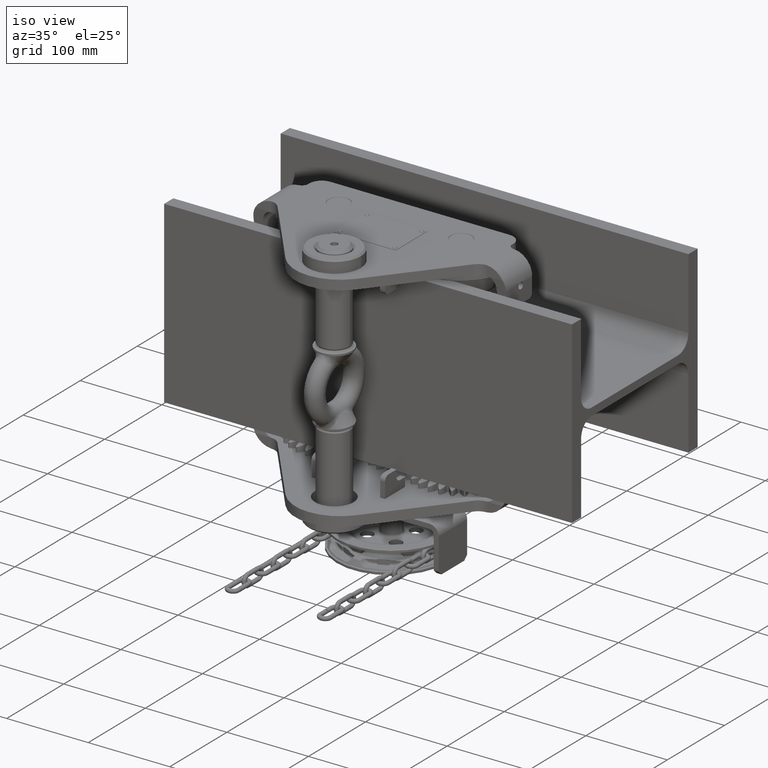
[diagram: clean part render]
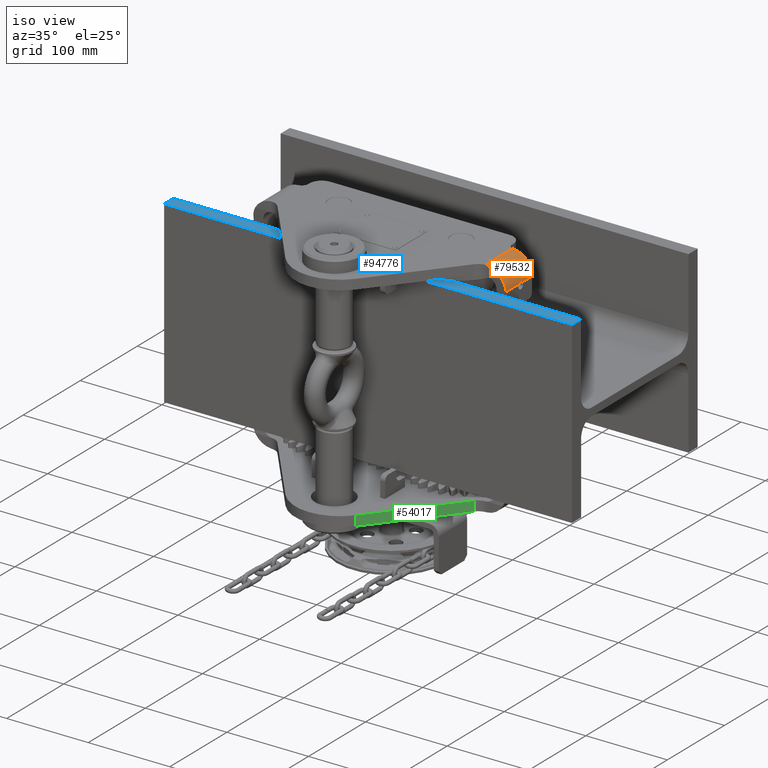
[diagram: same view with three faces highlighted in distinct colors, each labeled with its STEP entity id]
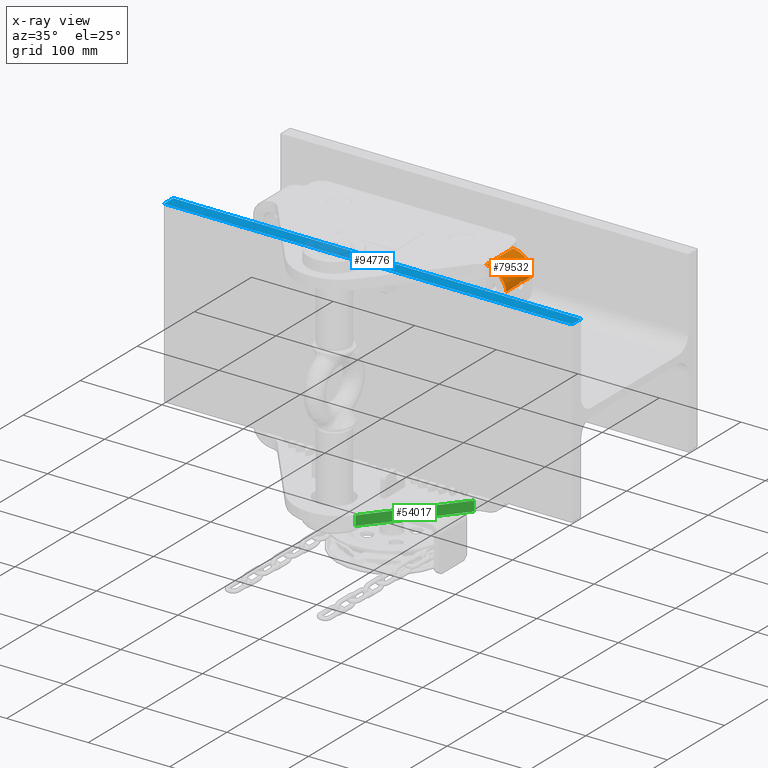
[diagram: x-ray of the same camera — body ghosted, the three highlighted faces saturated]
A machine part, iso view with three faces highlighted in distinct colors.
The next image is the same camera in x-ray (body ghosted, the three faces saturated) — at least one of them is partly hidden behind the body in this view.
Their STEP definitions:

[orange] entity #79532 — the highlighted cylindrical surface (edge-blend (fillet) strip) has radius 24 mm, axis along (0, 1, 0).
#750 = AXIS2_PLACEMENT_3D ( 'NONE', #62096, #78544, #3042 ) ;
#1427 = B_SPLINE_CURVE_WITH_KNOTS ( 'NONE', 3,
 ( #93374, #76256, #60116, #17156 ),
 .UNSPECIFIED., .F., .F.,
 ( 4, 4 ),
 ( 0.0000000000000000000, 0.002017796219549548300 ),
 .UNSPECIFIED. ) ;
#2749 = ORIENTED_EDGE ( 'NONE', *, *, #34547, .T. ) ;
#3042 = DIRECTION ( 'NONE',  ( -1.000000000000000000, 2.891205793294672300E-015, 0.0000000000000000000 ) ) ;
#3150 = CARTESIAN_POINT ( 'NONE',  ( 130.9999999999998300, -214.0000000000000900, 136.9999999999990600 ) ) ;
#5962 = CARTESIAN_POINT ( 'NONE',  ( 154.9983832628800500, -66.26621241989738600, 113.3048574880119600 ) ) ;
#8067 = VERTEX_POINT ( 'NONE', #99034 ) ;
#9664 = DIRECTION ( 'NONE',  ( 1.443289932012703500E-015, 1.000000000000000000, 1.774864183143377200E-016 ) ) ;
#13777 = LINE ( 'NONE', #43773, #16383 ) ;
#15110 = CARTESIAN_POINT ( 'NONE',  ( 154.9834419898462600, -64.95231560868063500, 113.8923899281639200 ) ) ;
#15161 = VERTEX_POINT ( 'NONE', #59508 ) ;
#16383 = VECTOR ( 'NONE', #95043, 1000.000000000000000 ) ;
#16520 = EDGE_CURVE ( 'NONE', #29580, #23206, #70363, .T. ) ;
#16639 = AXIS2_PLACEMENT_3D ( 'NONE', #89084, #55750, #73080 ) ;
#17156 = CARTESIAN_POINT ( 'NONE',  ( 131.0000000000000900, -43.74596669241490300, 136.9999999999989200 ) ) ;
#18936 = CARTESIAN_POINT ( 'NONE',  ( 154.9940151314229400, -62.14131869477211000, 113.5500360449581800 ) ) ;
#20649 = CARTESIAN_POINT ( 'NONE',  ( 154.9791576165636700, -64.00000000000008500, 113.9999999999995700 ) ) ;
#21479 = CARTESIAN_POINT ( 'NONE',  ( 131.0000000000000000, -91.04809906435021100, 136.9999999999994000 ) ) ;
#21720 = CARTESIAN_POINT ( 'NONE',  ( 155.0000000000000900, -66.64575131106445800, 112.9999999999997700 ) ) ;
#21879 = CARTESIAN_POINT ( 'NONE',  ( 154.9834782315479900, -63.04379662703256300, 113.8914257613671200 ) ) ;
#23206 = VERTEX_POINT ( 'NONE', #64597 ) ;
#23622 = VECTOR ( 'NONE', #9664, 1000.000000000000000 ) ;
#27378 = CARTESIAN_POINT ( 'NONE',  ( 154.9911833381892700, -62.35938034738000400, 113.6560943976108300 ) ) ;
#28451 = CARTESIAN_POINT ( 'NONE',  ( 155.0000000000000300, -89.31350998357126500, 112.9999999999995900 ) ) ;
#28496 = CARTESIAN_POINT ( 'NONE',  ( 132.2002743063654900, -90.99999999999980100, 136.9699674924571000 ) ) ;
#28744 = DIRECTION ( 'NONE',  ( 1.443289932012703500E-015, 1.000000000000000000, 1.774864183143377200E-016 ) ) ;
#29580 = VERTEX_POINT ( 'NONE', #28496 ) ;
#31268 = CARTESIAN_POINT ( 'NONE',  ( 154.9800898529625200, -64.48005417087898600, 113.9783353760625600 ) ) ;
#31785 = DIRECTION ( 'NONE',  ( -1.000000000000000000, 1.156482317317869000E-015, 0.0000000000000000000 ) ) ;
#34547 = EDGE_CURVE ( 'NONE', #99488, #29580, #41269, .T. ) ;
#34652 = ORIENTED_EDGE ( 'NONE', *, *, #72419, .F. ) ;
#35859 = CARTESIAN_POINT ( 'NONE',  ( 154.9858886638317900, -62.81249522030400800, 113.8273347759247800 ) ) ;
#35883 = ORIENTED_EDGE ( 'NONE', *, *, #37915, .T. ) ;
#37915 = EDGE_CURVE ( 'NONE', #58166, #94272, #72690, .T. ) ;
#38671 = AXIS2_PLACEMENT_3D ( 'NONE', #71520, #71890, #31785 ) ;
#38776 = CARTESIAN_POINT ( 'NONE',  ( 132.2002743063654900, -90.99999999999980100, 136.9699674924571000 ) ) ;
#41269 = B_SPLINE_CURVE_WITH_KNOTS ( 'NONE', 3,
 ( #21479, #72597, #79846, #38776 ),
 .UNSPECIFIED., .F., .F.,
 ( 4, 4 ),
 ( 0.0000000000000000000, 0.001201613033393788000 ),
 .UNSPECIFIED. ) ;
#43310 = ORIENTED_EDGE ( 'NONE', *, *, #95048, .F. ) ;
#43773 = CARTESIAN_POINT ( 'NONE',  ( 154.9999999999998600, -214.0000000000001400, 112.9999999999997700 ) ) ;
#44618 = CARTESIAN_POINT ( 'NONE',  ( 154.9791576165636700, -64.00000000000008500, 113.9999999999995700 ) ) ;
#44678 = EDGE_CURVE ( 'NONE', #99488, #15161, #103049, .T. ) ;
#45974 = EDGE_CURVE ( 'NONE', #82334, #8067, #50656, .T. ) ;
#47188 = LINE ( 'NONE', #66980, #23622 ) ;
#50656 = B_SPLINE_CURVE_WITH_KNOTS ( 'NONE', 3,
 ( #20649, #79343, #31268, #15110, #55846, #80804, #56959, #5962, #97566, #21720 ),
 .UNSPECIFIED., .F., .F.,
 ( 4, 2, 2, 2, 4 ),
 ( 0.002876214318826570800, 0.003594983903965049900, 0.004313753489103528500, 0.005032523074242007200, 0.005751292659380486700 ),
 .UNSPECIFIED. ) ;
#54769 = VERTEX_POINT ( 'NONE', #64358 ) ;
#55750 = DIRECTION ( 'NONE',  ( 3.269336612700054900E-015, 1.000000000000000000, 1.774864183143375400E-016 ) ) ;
#55846 = CARTESIAN_POINT ( 'NONE',  ( 154.9858960904387000, -65.18808659243418900, 113.8270599191720900 ) ) ;
#56959 = CARTESIAN_POINT ( 'NONE',  ( 154.9939591275471900, -65.85405069758790800, 113.5525058422104800 ) ) ;
#58166 = VERTEX_POINT ( 'NONE', #70258 ) ;
#58491 = CYLINDRICAL_SURFACE ( 'NONE', #38671, 24.00000000000005000 ) ;
#58760 = CARTESIAN_POINT ( 'NONE',  ( 133.0000000000000900, -44.00000000000005000, 136.9165214862017300 ) ) ;
#59508 = CARTESIAN_POINT ( 'NONE',  ( 131.0000000000000900, -43.74596669241490300, 136.9999999999989200 ) ) ;
#60116 = CARTESIAN_POINT ( 'NONE',  ( 131.6570357428105100, -43.91561259173275300, 136.9999999999989200 ) ) ;
#60831 = CARTESIAN_POINT ( 'NONE',  ( 154.9984101556534000, -61.73068422828944800, 113.3026743774056800 ) ) ;
#61212 = CARTESIAN_POINT ( 'NONE',  ( 154.9791576165636700, -63.75856409276595100, 113.9999999999995700 ) ) ;
#61502 =( BOUNDED_CURVE ( )  B_SPLINE_CURVE ( 3, ( #28451, #63009, #87122, #70376 ),
 .UNSPECIFIED., .F., .F. ) 
 B_SPLINE_CURVE_WITH_KNOTS ( ( 4, 4 ),
 ( 1.570796326794896800, 2.094395102393194800 ),
 .UNSPECIFIED. ) 
 CURVE ( )  GEOMETRIC_REPRESENTATION_ITEM ( )  RATIONAL_B_SPLINE_CURVE ( ( 1.000000000000000000, 0.9772838841927122800, 0.9772838841927122800, 1.000000000000000000 ) ) 
 REPRESENTATION_ITEM ( '' )  );
#62096 = CARTESIAN_POINT ( 'NONE',  ( 131.0000000000000900, -44.00000000000004300, 112.9999999999996000 ) ) ;
#63009 = CARTESIAN_POINT ( 'NONE',  ( 154.9999999999999100, -89.90903225052242900, 117.2373611072699500 ) ) ;
#63075 = EDGE_CURVE ( 'NONE', #54769, #8067, #13777, .T. ) ;
#63769 = CARTESIAN_POINT ( 'NONE',  ( 154.9801120645366800, -63.51561951039889900, 113.9778002574287300 ) ) ;
#64358 = CARTESIAN_POINT ( 'NONE',  ( 155.0000000000000300, -89.31350998357126500, 112.9999999999995900 ) ) ;
#64597 = CARTESIAN_POINT ( 'NONE',  ( 151.7846096908264700, -91.00000000000005700, 124.9999999999994900 ) ) ;
#65118 = EDGE_LOOP ( 'NONE', ( #34652, #86463, #35883, #97952, #104361, #2749, #86057, #43310, #91571, #88517 ) ) ;
#66980 = CARTESIAN_POINT ( 'NONE',  ( 154.9999999999998600, -214.0000000000001400, 112.9999999999997700 ) ) ;
#68588 = CARTESIAN_POINT ( 'NONE',  ( 155.0000000000000900, -61.35424868893569800, 112.9999999999997700 ) ) ;
#68939 = CARTESIAN_POINT ( 'NONE',  ( 155.0000000000000900, -61.53660455093325500, 113.1608227536532200 ) ) ;
#69972 = VERTEX_POINT ( 'NONE', #90201 ) ;
#70258 = CARTESIAN_POINT ( 'NONE',  ( 155.0000000000001100, -44.00000000000008500, 112.9999999999996000 ) ) ;
#70363 = CIRCLE ( 'NONE', #16639, 24.00000000000005000 ) ;
#70376 = CARTESIAN_POINT ( 'NONE',  ( 151.7846096908264700, -91.00000000000005700, 124.9999999999994900 ) ) ;
#71520 = CARTESIAN_POINT ( 'NONE',  ( 130.9999999999998300, -214.0000000000000900, 112.9999999999997700 ) ) ;
#71890 = DIRECTION ( 'NONE',  ( 1.443289932012703500E-015, 1.000000000000000000, 1.774864183143377200E-016 ) ) ;
#72419 = EDGE_CURVE ( 'NONE', #69972, #82334, #85316, .T. ) ;
#72597 = CARTESIAN_POINT ( 'NONE',  ( 131.3996986195029700, -91.01601297808308300, 136.9999999999994000 ) ) ;
#72690 = CIRCLE ( 'NONE', #750, 24.00000000000005000 ) ;
#73080 = DIRECTION ( 'NONE',  ( 1.000000000000000000, -3.469446951953607100E-015, -1.098658201451975600E-014 ) ) ;
#73749 = EDGE_CURVE ( 'NONE', #69972, #58166, #47188, .T. ) ;
#76256 = CARTESIAN_POINT ( 'NONE',  ( 132.3237767006531600, -44.00000000000004300, 136.9730701193076600 ) ) ;
#78544 = DIRECTION ( 'NONE',  ( -2.862609139630093600E-015, -1.000000000000000000, -1.774864183143376400E-016 ) ) ;
#79343 = CARTESIAN_POINT ( 'NONE',  ( 154.9791576165636700, -64.24134055065980000, 113.9999999999995900 ) ) ;
#79532 = ADVANCED_FACE ( 'NONE', ( #92577 ), #58491, .T. ) ;
#79846 = CARTESIAN_POINT ( 'NONE',  ( 131.7997916621560800, -90.99999999999978700, 136.9900212963741000 ) ) ;
#80804 = CARTESIAN_POINT ( 'NONE',  ( 154.9911572625071900, -65.63844167376674900, 113.6569722801410100 ) ) ;
#81900 = EDGE_CURVE ( 'NONE', #94272, #15161, #1427, .T. ) ;
#82334 = VERTEX_POINT ( 'NONE', #107025 ) ;
#85316 = B_SPLINE_CURVE_WITH_KNOTS ( 'NONE', 3,
 ( #68588, #68939, #60831, #18936, #27378, #35859, #21879, #63769, #61212, #44618 ),
 .UNSPECIFIED., .F., .F.,
 ( 4, 2, 2, 2, 4 ),
 ( 2.309724214262959100E-016, 0.0007190535797068158500, 0.001438107159413400800, 0.002157160739119986100, 0.002876214318826570800 ),
 .UNSPECIFIED. ) ;
#86057 = ORIENTED_EDGE ( 'NONE', *, *, #16520, .T. ) ;
#86463 = ORIENTED_EDGE ( 'NONE', *, *, #73749, .T. ) ;
#87122 = CARTESIAN_POINT ( 'NONE',  ( 153.9032902444616300, -90.48426258830079400, 121.3303376360952200 ) ) ;
#88517 = ORIENTED_EDGE ( 'NONE', *, *, #45974, .F. ) ;
#89084 = CARTESIAN_POINT ( 'NONE',  ( 131.0000000000000000, -90.99999999999980100, 112.9999999999995900 ) ) ;
#90201 = CARTESIAN_POINT ( 'NONE',  ( 155.0000000000000900, -61.35424868893569800, 112.9999999999997700 ) ) ;
#91571 = ORIENTED_EDGE ( 'NONE', *, *, #63075, .T. ) ;
#92577 = FACE_OUTER_BOUND ( 'NONE', #65118, .T. ) ;
#93374 = CARTESIAN_POINT ( 'NONE',  ( 133.0000000000000900, -44.00000000000005000, 136.9165214862017300 ) ) ;
#94272 = VERTEX_POINT ( 'NONE', #58760 ) ;
#95043 = DIRECTION ( 'NONE',  ( 1.443289932012703500E-015, 1.000000000000000000, 1.774864183143377200E-016 ) ) ;
#95048 = EDGE_CURVE ( 'NONE', #54769, #23206, #61502, .T. ) ;
#97566 = CARTESIAN_POINT ( 'NONE',  ( 155.0000000000000000, -66.46346988230131100, 113.1607571097106900 ) ) ;
#97952 = ORIENTED_EDGE ( 'NONE', *, *, #81900, .T. ) ;
#99034 = CARTESIAN_POINT ( 'NONE',  ( 155.0000000000000900, -66.64575131106445800, 112.9999999999997700 ) ) ;
#99488 = VERTEX_POINT ( 'NONE', #105326 ) ;
#103049 = LINE ( 'NONE', #3150, #108294 ) ;
#104361 = ORIENTED_EDGE ( 'NONE', *, *, #44678, .F. ) ;
#105326 = CARTESIAN_POINT ( 'NONE',  ( 131.0000000000000000, -91.04809906435021100, 136.9999999999994000 ) ) ;
#107025 = CARTESIAN_POINT ( 'NONE',  ( 154.9791576165636700, -64.00000000000008500, 113.9999999999995700 ) ) ;
#108294 = VECTOR ( 'NONE', #28744, 1000.000000000000000 ) ;

[blue] entity #94776 — the highlighted planar face has unit normal (0, 0, -1).
#8 = DIRECTION ( 'NONE',  ( 1.925929944387235900E-034, 9.102935034118149400E-016, -1.000000000000000000 ) ) ;
#3419 = EDGE_CURVE ( 'NONE', #32816, #4416, #94757, .T. ) ;
#4416 = VERTEX_POINT ( 'NONE', #8699 ) ;
#5253 = ORIENTED_EDGE ( 'NONE', *, *, #3419, .T. ) ;
#5676 = CARTESIAN_POINT ( 'NONE',  ( -250.0000000000000600, -110.0000000000000300, 109.9999999999999300 ) ) ;
#8208 = VECTOR ( 'NONE', #64261, 1000.000000000000000 ) ;
#8699 = CARTESIAN_POINT ( 'NONE',  ( 250.0000000000000600, -110.0000000000000300, 109.9999999999999300 ) ) ;
#10451 = VERTEX_POINT ( 'NONE', #45384 ) ;
#18664 = DIRECTION ( 'NONE',  ( -1.670477943807616000E-049, 1.000000000000000000, 9.102935034118153400E-016 ) ) ;
#20645 = EDGE_CURVE ( 'NONE', #10451, #80266, #58039, .T. ) ;
#22398 = EDGE_LOOP ( 'NONE', ( #107714, #77740, #35146, #5253 ) ) ;
#27764 = AXIS2_PLACEMENT_3D ( 'NONE', #58996, #8, #68193 ) ;
#29925 = LINE ( 'NONE', #71194, #33821 ) ;
#32816 = VERTEX_POINT ( 'NONE', #5676 ) ;
#33821 = VECTOR ( 'NONE', #80640, 1000.000000000000000 ) ;
#35146 = ORIENTED_EDGE ( 'NONE', *, *, #101766, .F. ) ;
#35729 = VECTOR ( 'NONE', #59340, 1000.000000000000000 ) ;
#39961 = VECTOR ( 'NONE', #18664, 1000.000000000000000 ) ;
#45384 = CARTESIAN_POINT ( 'NONE',  ( -250.0000000000000600, -93.99999999999997200, 109.9999999999999400 ) ) ;
#49397 = PLANE ( 'NONE',  #27764 ) ;
#55752 = CARTESIAN_POINT ( 'NONE',  ( -250.0000000000000600, -110.0000000000000300, 109.9999999999999300 ) ) ;
#58039 = LINE ( 'NONE', #67067, #35729 ) ;
#58996 = CARTESIAN_POINT ( 'NONE',  ( -250.0000000000000600, -110.0000000000000300, 109.9999999999999300 ) ) ;
#59340 = DIRECTION ( 'NONE',  ( 1.000000000000000000, 0.0000000000000000000, 7.703719777548941700E-034 ) ) ;
#62335 = LINE ( 'NONE', #68270, #39961 ) ;
#64261 = DIRECTION ( 'NONE',  ( 1.000000000000000000, 0.0000000000000000000, 7.703719777548941700E-034 ) ) ;
#67067 = CARTESIAN_POINT ( 'NONE',  ( -250.0000000000000600, -93.99999999999997200, 109.9999999999999400 ) ) ;
#68193 = DIRECTION ( 'NONE',  ( -1.670477943807616000E-049, 1.000000000000000000, 9.102935034118149400E-016 ) ) ;
#68270 = CARTESIAN_POINT ( 'NONE',  ( -250.0000000000000600, -110.0000000000000300, 109.9999999999999300 ) ) ;
#71194 = CARTESIAN_POINT ( 'NONE',  ( 250.0000000000000600, -110.0000000000000300, 109.9999999999999300 ) ) ;
#73180 = FACE_OUTER_BOUND ( 'NONE', #22398, .T. ) ;
#77740 = ORIENTED_EDGE ( 'NONE', *, *, #20645, .F. ) ;
#80266 = VERTEX_POINT ( 'NONE', #87951 ) ;
#80640 = DIRECTION ( 'NONE',  ( -1.670477943807616000E-049, 1.000000000000000000, 9.102935034118153400E-016 ) ) ;
#87951 = CARTESIAN_POINT ( 'NONE',  ( 250.0000000000000600, -93.99999999999997200, 109.9999999999999400 ) ) ;
#94757 = LINE ( 'NONE', #55752, #8208 ) ;
#94776 = ADVANCED_FACE ( 'NONE', ( #73180 ), #49397, .F. ) ;
#98729 = EDGE_CURVE ( 'NONE', #4416, #80266, #29925, .T. ) ;
#101766 = EDGE_CURVE ( 'NONE', #32816, #10451, #62335, .T. ) ;
#107714 = ORIENTED_EDGE ( 'NONE', *, *, #98729, .T. ) ;

[green] entity #54017 — the highlighted planar face has unit normal (0.7803, -0.6255, -0).
#4338 = CARTESIAN_POINT ( 'NONE',  ( 120.4964843667718200, -96.61803319927669500, -136.9999999999994600 ) ) ;
#6331 = VERTEX_POINT ( 'NONE', #60033 ) ;
#7719 = CARTESIAN_POINT ( 'NONE',  ( 42.91389644517570900, -193.4005449359849300, -136.9999999999994600 ) ) ;
#12990 = FACE_OUTER_BOUND ( 'NONE', #90823, .T. ) ;
#13746 = DIRECTION ( 'NONE',  ( 0.0000000000000000000, 1.224606353822377300E-016, -1.000000000000000000 ) ) ;
#23586 = CARTESIAN_POINT ( 'NONE',  ( 42.91389644517570900, -193.4005449359849300, -124.9999999999994700 ) ) ;
#26760 = EDGE_CURVE ( 'NONE', #6331, #101007, #82602, .T. ) ;
#27523 = LINE ( 'NONE', #57068, #97027 ) ;
#28488 = PLANE ( 'NONE',  #44912 ) ;
#29525 = CARTESIAN_POINT ( 'NONE',  ( 42.91389644517570900, -193.4005449359849300, -89.99999999999947400 ) ) ;
#32327 = VERTEX_POINT ( 'NONE', #32537 ) ;
#32537 = CARTESIAN_POINT ( 'NONE',  ( 120.4964843667718200, -96.61803319927669500, -124.9999999999994500 ) ) ;
#32834 = VERTEX_POINT ( 'NONE', #23586 ) ;
#43903 = ORIENTED_EDGE ( 'NONE', *, *, #69332, .T. ) ;
#44912 = AXIS2_PLACEMENT_3D ( 'NONE', #60084, #62679, #71134 ) ;
#48174 = VECTOR ( 'NONE', #13746, 1000.000000000000000 ) ;
#54017 = ADVANCED_FACE ( 'NONE', ( #12990 ), #28488, .T. ) ;
#55772 = EDGE_CURVE ( 'NONE', #32327, #6331, #72646, .T. ) ;
#57068 = CARTESIAN_POINT ( 'NONE',  ( -35.17517783752614900, -290.8148868745644200, -124.9999999999994700 ) ) ;
#60033 = CARTESIAN_POINT ( 'NONE',  ( 120.4964843667718200, -96.61803319927669500, -136.9999999999994600 ) ) ;
#60084 = CARTESIAN_POINT ( 'NONE',  ( 120.4964843667718200, -96.61803319927669500, -89.99999999999946000 ) ) ;
#62679 = DIRECTION ( 'NONE',  ( 0.7802526626395609500, -0.6254644533815454400, -7.659477437010804600E-017 ) ) ;
#66134 = ORIENTED_EDGE ( 'NONE', *, *, #55772, .F. ) ;
#69332 = EDGE_CURVE ( 'NONE', #32834, #101007, #87542, .T. ) ;
#71134 = DIRECTION ( 'NONE',  ( -0.6254644533815454400, -0.7802526626395609500, -9.555023682552341000E-017 ) ) ;
#72646 = LINE ( 'NONE', #76093, #75220 ) ;
#73686 = EDGE_CURVE ( 'NONE', #32834, #32327, #27523, .T. ) ;
#75220 = VECTOR ( 'NONE', #84855, 1000.000000000000000 ) ;
#76093 = CARTESIAN_POINT ( 'NONE',  ( 120.4964843667718200, -96.61803319927669500, -89.99999999999946000 ) ) ;
#79640 = ORIENTED_EDGE ( 'NONE', *, *, #73686, .F. ) ;
#79981 = VECTOR ( 'NONE', #80222, 1000.000000000000200 ) ;
#80222 = DIRECTION ( 'NONE',  ( -0.6254644533815453300, -0.7802526626395610600, -9.555023682552342200E-017 ) ) ;
#82602 = LINE ( 'NONE', #4338, #79981 ) ;
#84855 = DIRECTION ( 'NONE',  ( 0.0000000000000000000, 1.224606353822377300E-016, -1.000000000000000000 ) ) ;
#87542 = LINE ( 'NONE', #29525, #48174 ) ;
#90823 = EDGE_LOOP ( 'NONE', ( #43903, #101111, #66134, #79640 ) ) ;
#93216 = DIRECTION ( 'NONE',  ( 0.6254644533815454400, 0.7802526626395609500, 9.555023682552341000E-017 ) ) ;
#97027 = VECTOR ( 'NONE', #93216, 1000.000000000000000 ) ;
#101007 = VERTEX_POINT ( 'NONE', #7719 ) ;
#101111 = ORIENTED_EDGE ( 'NONE', *, *, #26760, .F. ) ;